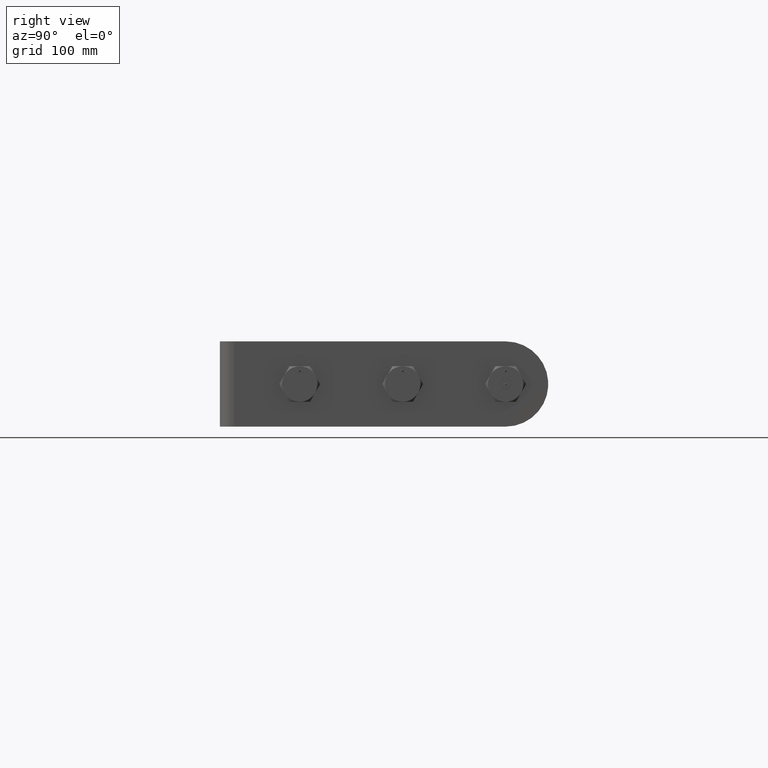
[diagram: clean part render]
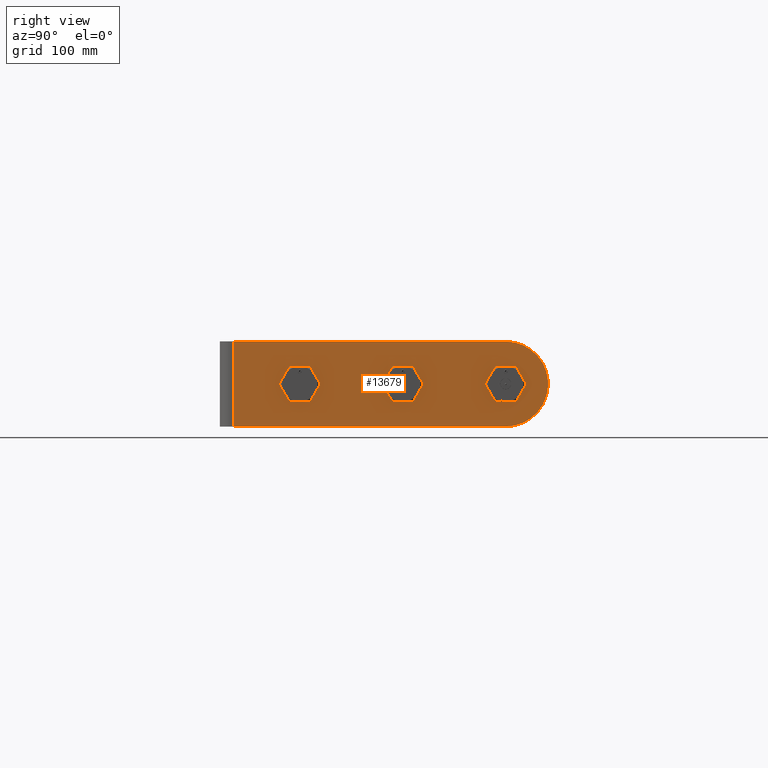
[diagram: same view with one face highlighted and labeled with its STEP entity id]
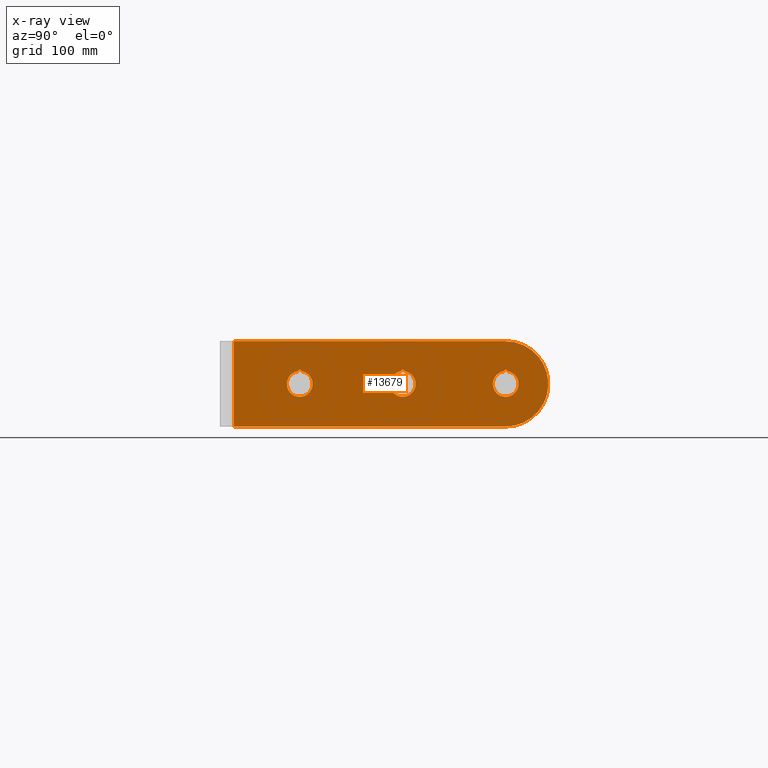
[diagram: x-ray of the same camera — body ghosted, the highlighted face saturated]
A machine part, right view. The second image highlights one B-rep face of the part: STEP entity #13679.
The next image is the same camera in x-ray: the body ghosted, the highlighted face saturated — about 0% of this face is hidden behind the body in this view.
In plain terms, the highlighted planar face has unit normal (-1, -0, 0).
Its self-contained STEP definition (entity closure, byte-faithful):
#296 = ORIENTED_EDGE ( 'NONE', *, *, #12176, .T. ) ;
#680 = VERTEX_POINT ( 'NONE', #19780 ) ;
#813 = EDGE_CURVE ( 'NONE', #3363, #17094, #9387, .T. ) ;
#874 = DIRECTION ( 'NONE',  ( -1.000000000000000000, -7.538211903047087144E-17, 0.000000000000000000 ) ) ;
#891 = CIRCLE ( 'NONE', #4928, 0.4530000000000003468 ) ;
#1113 = ORIENTED_EDGE ( 'NONE', *, *, #17726, .T. ) ;
#1347 = DIRECTION ( 'NONE',  ( -1.000000000000000000, -7.538211903047078516E-17, 0.000000000000000000 ) ) ;
#1601 = EDGE_CURVE ( 'NONE', #13603, #9860, #9083, .T. ) ;
#1627 = LINE ( 'NONE', #3518, #11161 ) ;
#1651 = FACE_BOUND ( 'NONE', #12226, .T. ) ;
#1710 = CARTESIAN_POINT ( 'NONE',  ( -0.04499999999999972772, -0.2500000000000016653, 0.000000000000000000 ) ) ;
#1715 = DIRECTION ( 'NONE',  ( -0.000000000000000000, -0.000000000000000000, -1.000000000000000000 ) ) ;
#1775 = DIRECTION ( 'NONE',  ( 1.000000000000000000, 1.204137338979501099E-16, -0.000000000000000000 ) ) ;
#1855 = FACE_BOUND ( 'NONE', #10286, .T. ) ;
#2713 = DIRECTION ( 'NONE',  ( -0.000000000000000000, -0.000000000000000000, -1.000000000000000000 ) ) ;
#3047 = VERTEX_POINT ( 'NONE', #12759 ) ;
#3063 = ORIENTED_EDGE ( 'NONE', *, *, #6011, .T. ) ;
#3266 = VERTEX_POINT ( 'NONE', #3290 ) ;
#3272 = DIRECTION ( 'NONE',  ( -6.244565049226323508E-17, 1.000000000000000000, 0.000000000000000000 ) ) ;
#3290 = CARTESIAN_POINT ( 'NONE',  ( -5.530000000000000249, -0.2500000000000013323, 1.500000000000000222 ) ) ;
#3317 = ORIENTED_EDGE ( 'NONE', *, *, #4555, .T. ) ;
#3363 = VERTEX_POINT ( 'NONE', #1710 ) ;
#3435 = AXIS2_PLACEMENT_3D ( 'NONE', #16433, #15056, #11873 ) ;
#3518 = CARTESIAN_POINT ( 'NONE',  ( 5.530000000000000249, -0.2500000000000000000, 1.500000000000000222 ) ) ;
#3563 = LINE ( 'NONE', #6734, #11064 ) ;
#3683 = VERTEX_POINT ( 'NONE', #13980 ) ;
#3784 = ORIENTED_EDGE ( 'NONE', *, *, #16917, .T. ) ;
#3953 = VERTEX_POINT ( 'NONE', #7761 ) ;
#4096 = DIRECTION ( 'NONE',  ( -6.244565049226323508E-17, 1.000000000000000000, 0.000000000000000000 ) ) ;
#4195 = ORIENTED_EDGE ( 'NONE', *, *, #14665, .T. ) ;
#4210 = ORIENTED_EDGE ( 'NONE', *, *, #15228, .F. ) ;
#4219 = CARTESIAN_POINT ( 'NONE',  ( -3.216999999999999638, -0.2500000000000018874, 0.000000000000000000 ) ) ;
#4508 = DIRECTION ( 'NONE',  ( -1.000000000000000000, 0.000000000000000000, 0.000000000000000000 ) ) ;
#4555 = EDGE_CURVE ( 'NONE', #16447, #13603, #8957, .T. ) ;
#4612 = CARTESIAN_POINT ( 'NONE',  ( 0.4079999999999606719, -0.2500000000000006106, 0.4380000000000137672 ) ) ;
#4659 = AXIS2_PLACEMENT_3D ( 'NONE', #5742, #8813, #17009 ) ;
#4708 = EDGE_LOOP ( 'NONE', ( #11243, #296, #3063, #3317 ) ) ;
#4865 = CARTESIAN_POINT ( 'NONE',  ( 4.032999999999960394, -0.2500000000000002220, 0.4380000000000264238 ) ) ;
#4928 = AXIS2_PLACEMENT_3D ( 'NONE', #17573, #20645, #1347 ) ;
#5188 = DIRECTION ( 'NONE',  ( 6.244565049226323508E-17, -1.000000000000000000, 0.000000000000000000 ) ) ;
#5253 = EDGE_LOOP ( 'NONE', ( #6798, #18603, #14029, #19959, #4210, #15878 ) ) ;
#5703 = CARTESIAN_POINT ( 'NONE',  ( 3.580000000000000959, -0.2500000000000014433, 0.000000000000000000 ) ) ;
#5742 = CARTESIAN_POINT ( 'NONE',  ( 0.4080000000000006954, -0.2500000000000016098, 0.000000000000000000 ) ) ;
#5859 = LINE ( 'NONE', #12333, #6403 ) ;
#5932 = CIRCLE ( 'NONE', #16438, 0.4530000000000003468 ) ;
#6011 = EDGE_CURVE ( 'NONE', #20834, #16447, #8795, .T. ) ;
#6328 = DIRECTION ( 'NONE',  ( 6.244565049226323508E-17, -1.000000000000000000, 0.000000000000000000 ) ) ;
#6403 = VECTOR ( 'NONE', #2713, 39.37007874015748143 ) ;
#6516 = DIRECTION ( 'NONE',  ( -6.244565049226323508E-17, 1.000000000000000000, 0.000000000000000000 ) ) ;
#6714 = CARTESIAN_POINT ( 'NONE',  ( -3.154659912888969409, -0.2500000000000009992, 0.4486899971461248415 ) ) ;
#6734 = CARTESIAN_POINT ( 'NONE',  ( 5.530000000000000249, -0.2500000000000000000, -1.500000000000000222 ) ) ;
#6774 = EDGE_CURVE ( 'NONE', #12131, #18821, #16292, .T. ) ;
#6781 = ORIENTED_EDGE ( 'NONE', *, *, #6774, .T. ) ;
#6798 = ORIENTED_EDGE ( 'NONE', *, *, #17951, .T. ) ;
#6816 = PLANE ( 'NONE',  #19929 ) ;
#7059 = CIRCLE ( 'NONE', #18300, 0.06324999999999993128 ) ;
#7096 = DIRECTION ( 'NONE',  ( -6.244565049226323508E-17, 1.000000000000000000, 0.000000000000000000 ) ) ;
#7712 = AXIS2_PLACEMENT_3D ( 'NONE', #18647, #4096, #10529 ) ;
#7761 = CARTESIAN_POINT ( 'NONE',  ( 5.530000000000000249, -0.2500000000000013323, 0.09482088377568229087 ) ) ;
#7802 = ORIENTED_EDGE ( 'NONE', *, *, #813, .T. ) ;
#8038 = DIRECTION ( 'NONE',  ( -1.000000000000000000, 0.000000000000000000, 0.000000000000000000 ) ) ;
#8088 = FACE_OUTER_BOUND ( 'NONE', #5253, .T. ) ;
#8289 = FACE_BOUND ( 'NONE', #4708, .T. ) ;
#8714 = ORIENTED_EDGE ( 'NONE', *, *, #13298, .T. ) ;
#8795 = CIRCLE ( 'NONE', #20700, 0.4529999999999997917 ) ;
#8813 = DIRECTION ( 'NONE',  ( -6.244565049226323508E-17, 1.000000000000000000, 0.000000000000000000 ) ) ;
#8858 = DIRECTION ( 'NONE',  ( -6.244565049226323508E-17, 1.000000000000000000, 0.000000000000000000 ) ) ;
#8957 = CIRCLE ( 'NONE', #16759, 0.06324999999999993128 ) ;
#9083 = CIRCLE ( 'NONE', #10081, 0.4529999999999997917 ) ;
#9088 = DIRECTION ( 'NONE',  ( -1.000000000000000000, -7.538211903047078516E-17, 0.000000000000000000 ) ) ;
#9387 = CIRCLE ( 'NONE', #4659, 0.4530000000000004023 ) ;
#9577 = DIRECTION ( 'NONE',  ( -1.000000000000000000, -7.538211903047087144E-17, 0.000000000000000000 ) ) ;
#9633 = DIRECTION ( 'NONE',  ( 1.000000000000000000, 6.829619984160660511E-17, 0.000000000000000000 ) ) ;
#9641 = EDGE_CURVE ( 'NONE', #11406, #12972, #5932, .T. ) ;
#9860 = VERTEX_POINT ( 'NONE', #18238 ) ;
#10019 = CARTESIAN_POINT ( 'NONE',  ( 4.033000000000001251, -0.2500000000000014433, 0.000000000000000000 ) ) ;
#10081 = AXIS2_PLACEMENT_3D ( 'NONE', #15185, #7096, #874 ) ;
#10228 = CARTESIAN_POINT ( 'NONE',  ( -3.216999999999999638, -0.2500000000000018874, 0.000000000000000000 ) ) ;
#10286 = EDGE_LOOP ( 'NONE', ( #17089, #8714, #7802, #4195 ) ) ;
#10329 = CIRCLE ( 'NONE', #14426, 0.4530000000000003468 ) ;
#10444 = CIRCLE ( 'NONE', #13528, 1.499999999999999334 ) ;
#10529 = DIRECTION ( 'NONE',  ( -1.000000000000000000, -7.538211903047077283E-17, 0.000000000000000000 ) ) ;
#10919 = CARTESIAN_POINT ( 'NONE',  ( 3.970659912888883536, -0.2500000000000014433, 0.4486899971461121295 ) ) ;
#11064 = VECTOR ( 'NONE', #1775, 39.37007874015748143 ) ;
#11072 = CARTESIAN_POINT ( 'NONE',  ( 4.095340087111035920, -0.2500000000000001665, 0.4486899971461236203 ) ) ;
#11161 = VECTOR ( 'NONE', #14979, 39.37007874015748143 ) ;
#11199 = CARTESIAN_POINT ( 'NONE',  ( -2.763999999999999346, -0.2500000000000018319, 5.547650000137516850E-17 ) ) ;
#11204 = DIRECTION ( 'NONE',  ( -1.000000000000000000, -7.538211903047087144E-17, 0.000000000000000000 ) ) ;
#11243 = ORIENTED_EDGE ( 'NONE', *, *, #1601, .T. ) ;
#11255 = CARTESIAN_POINT ( 'NONE',  ( 4.033000000000001251, -0.2500000000000014433, 0.000000000000000000 ) ) ;
#11338 = DIRECTION ( 'NONE',  ( -1.204137338979501345E-16, 1.000000000000000000, 0.000000000000000000 ) ) ;
#11406 = VERTEX_POINT ( 'NONE', #11199 ) ;
#11859 = DIRECTION ( 'NONE',  ( -6.244565049226323508E-17, 1.000000000000000000, 0.000000000000000000 ) ) ;
#11873 = DIRECTION ( 'NONE',  ( -1.000000000000000000, 0.000000000000000000, 0.000000000000000000 ) ) ;
#12131 = VERTEX_POINT ( 'NONE', #16006 ) ;
#12176 = EDGE_CURVE ( 'NONE', #9860, #20834, #13816, .T. ) ;
#12226 = EDGE_LOOP ( 'NONE', ( #1113, #18655, #3784, #6781 ) ) ;
#12333 = CARTESIAN_POINT ( 'NONE',  ( -5.530000000000000249, -0.2500000000000013323, 1.500000000000000222 ) ) ;
#12425 = AXIS2_PLACEMENT_3D ( 'NONE', #11255, #5188, #9633 ) ;
#12467 = CIRCLE ( 'NONE', #13479, 0.4530000000000004023 ) ;
#12759 = CARTESIAN_POINT ( 'NONE',  ( 5.530000000000000249, -0.2500000000000013323, -0.09482088377568229087 ) ) ;
#12774 = CARTESIAN_POINT ( 'NONE',  ( 0.3456599128888863670, -0.2500000000000016098, 0.4486899971461131287 ) ) ;
#12846 = LINE ( 'NONE', #19342, #14165 ) ;
#12910 = CARTESIAN_POINT ( 'NONE',  ( 0.4703400871110330339, -0.2500000000000005551, 0.4486899971461245640 ) ) ;
#12956 = CARTESIAN_POINT ( 'NONE',  ( -3.669999999999999929, -0.2500000000000018874, 0.000000000000000000 ) ) ;
#12972 = VERTEX_POINT ( 'NONE', #12956 ) ;
#12983 = DIRECTION ( 'NONE',  ( -1.204137338979501345E-16, 1.000000000000000000, 0.000000000000000000 ) ) ;
#13210 = VERTEX_POINT ( 'NONE', #12910 ) ;
#13298 = EDGE_CURVE ( 'NONE', #680, #3363, #12467, .T. ) ;
#13303 = CARTESIAN_POINT ( 'NONE',  ( 5.530000000000000249, -0.2500000000000000000, 1.500000000000000222 ) ) ;
#13479 = AXIS2_PLACEMENT_3D ( 'NONE', #15858, #8858, #13755 ) ;
#13487 = EDGE_CURVE ( 'NONE', #13210, #680, #17253, .T. ) ;
#13528 = AXIS2_PLACEMENT_3D ( 'NONE', #19614, #6328, #19317 ) ;
#13603 = VERTEX_POINT ( 'NONE', #11072 ) ;
#13679 = ADVANCED_FACE ( 'NONE', ( #1855, #8088, #1651, #8289 ), #6816, .F. ) ;
#13755 = DIRECTION ( 'NONE',  ( -1.000000000000000000, -7.538211903047077283E-17, 0.000000000000000000 ) ) ;
#13816 = CIRCLE ( 'NONE', #16164, 0.4529999999999997917 ) ;
#13953 = CARTESIAN_POINT ( 'NONE',  ( 4.033000000000001251, -0.2500000000000001665, -1.500000000000000222 ) ) ;
#13980 = CARTESIAN_POINT ( 'NONE',  ( -5.530000000000000249, -0.2500000000000013323, -1.500000000000000222 ) ) ;
#14029 = ORIENTED_EDGE ( 'NONE', *, *, #19859, .F. ) ;
#14165 = VECTOR ( 'NONE', #1715, 39.37007874015748143 ) ;
#14426 = AXIS2_PLACEMENT_3D ( 'NONE', #10228, #11859, #15273 ) ;
#14665 = EDGE_CURVE ( 'NONE', #17094, #13210, #7059, .T. ) ;
#14787 = DIRECTION ( 'NONE',  ( -1.000000000000000000, -1.204137338979501345E-16, 0.000000000000000000 ) ) ;
#14934 = VERTEX_POINT ( 'NONE', #13953 ) ;
#14975 = EDGE_CURVE ( 'NONE', #3266, #3683, #5859, .T. ) ;
#14979 = DIRECTION ( 'NONE',  ( 1.000000000000000000, 1.204137338979501099E-16, -0.000000000000000000 ) ) ;
#15056 = DIRECTION ( 'NONE',  ( -1.204137338979501345E-16, 1.000000000000000000, 0.000000000000000000 ) ) ;
#15185 = CARTESIAN_POINT ( 'NONE',  ( 4.033000000000001251, -0.2500000000000014433, 0.000000000000000000 ) ) ;
#15228 = EDGE_CURVE ( 'NONE', #3266, #19777, #1627, .T. ) ;
#15273 = DIRECTION ( 'NONE',  ( -1.000000000000000000, -7.538211903047078516E-17, 0.000000000000000000 ) ) ;
#15828 = EDGE_CURVE ( 'NONE', #3953, #19777, #10444, .T. ) ;
#15858 = CARTESIAN_POINT ( 'NONE',  ( 0.4080000000000006954, -0.2500000000000016098, 0.000000000000000000 ) ) ;
#15878 = ORIENTED_EDGE ( 'NONE', *, *, #14975, .T. ) ;
#16006 = CARTESIAN_POINT ( 'NONE',  ( -3.279340087111112023, -0.2500000000000018874, 0.4486899971461134062 ) ) ;
#16121 = CARTESIAN_POINT ( 'NONE',  ( 4.033000000000001251, -0.2500000000000014433, 1.499999999999999778 ) ) ;
#16164 = AXIS2_PLACEMENT_3D ( 'NONE', #19089, #6516, #9577 ) ;
#16292 = CIRCLE ( 'NONE', #3435, 0.06324999999999993128 ) ;
#16433 = CARTESIAN_POINT ( 'NONE',  ( -3.217000000000039606, -0.2500000000000009992, 0.4380000000000011107 ) ) ;
#16438 = AXIS2_PLACEMENT_3D ( 'NONE', #4219, #17187, #9088 ) ;
#16447 = VERTEX_POINT ( 'NONE', #10919 ) ;
#16759 = AXIS2_PLACEMENT_3D ( 'NONE', #4865, #11338, #8038 ) ;
#16917 = EDGE_CURVE ( 'NONE', #12972, #12131, #891, .T. ) ;
#17009 = DIRECTION ( 'NONE',  ( -1.000000000000000000, -7.538211903047077283E-17, 0.000000000000000000 ) ) ;
#17089 = ORIENTED_EDGE ( 'NONE', *, *, #13487, .T. ) ;
#17094 = VERTEX_POINT ( 'NONE', #12774 ) ;
#17187 = DIRECTION ( 'NONE',  ( -6.244565049226323508E-17, 1.000000000000000000, 0.000000000000000000 ) ) ;
#17253 = CIRCLE ( 'NONE', #7712, 0.4530000000000004023 ) ;
#17573 = CARTESIAN_POINT ( 'NONE',  ( -3.216999999999999638, -0.2500000000000018874, 0.000000000000000000 ) ) ;
#17726 = EDGE_CURVE ( 'NONE', #18821, #11406, #10329, .T. ) ;
#17879 = CIRCLE ( 'NONE', #12425, 1.499999999999999334 ) ;
#17951 = EDGE_CURVE ( 'NONE', #3683, #14934, #3563, .T. ) ;
#18238 = CARTESIAN_POINT ( 'NONE',  ( 4.486000000000000654, -0.2500000000000013878, 5.547650000137510070E-17 ) ) ;
#18300 = AXIS2_PLACEMENT_3D ( 'NONE', #4612, #19078, #4508 ) ;
#18603 = ORIENTED_EDGE ( 'NONE', *, *, #19294, .T. ) ;
#18647 = CARTESIAN_POINT ( 'NONE',  ( 0.4080000000000006954, -0.2500000000000016098, 0.000000000000000000 ) ) ;
#18655 = ORIENTED_EDGE ( 'NONE', *, *, #9641, .T. ) ;
#18821 = VERTEX_POINT ( 'NONE', #6714 ) ;
#19078 = DIRECTION ( 'NONE',  ( -1.204137338979501345E-16, 1.000000000000000000, 0.000000000000000000 ) ) ;
#19089 = CARTESIAN_POINT ( 'NONE',  ( 4.033000000000001251, -0.2500000000000014433, 0.000000000000000000 ) ) ;
#19294 = EDGE_CURVE ( 'NONE', #14934, #3047, #17879, .T. ) ;
#19317 = DIRECTION ( 'NONE',  ( 1.000000000000000000, 6.829619984160660511E-17, 0.000000000000000000 ) ) ;
#19342 = CARTESIAN_POINT ( 'NONE',  ( 5.530000000000000249, -0.2500000000000000000, 1.500000000000000222 ) ) ;
#19614 = CARTESIAN_POINT ( 'NONE',  ( 4.033000000000001251, -0.2500000000000014433, 0.000000000000000000 ) ) ;
#19777 = VERTEX_POINT ( 'NONE', #16121 ) ;
#19780 = CARTESIAN_POINT ( 'NONE',  ( 0.8610000000000009868, -0.2500000000000016098, 5.547650000137516850E-17 ) ) ;
#19859 = EDGE_CURVE ( 'NONE', #3953, #3047, #12846, .T. ) ;
#19929 = AXIS2_PLACEMENT_3D ( 'NONE', #13303, #12983, #14787 ) ;
#19959 = ORIENTED_EDGE ( 'NONE', *, *, #15828, .T. ) ;
#20645 = DIRECTION ( 'NONE',  ( -6.244565049226323508E-17, 1.000000000000000000, 0.000000000000000000 ) ) ;
#20700 = AXIS2_PLACEMENT_3D ( 'NONE', #10019, #3272, #11204 ) ;
#20834 = VERTEX_POINT ( 'NONE', #5703 ) ;